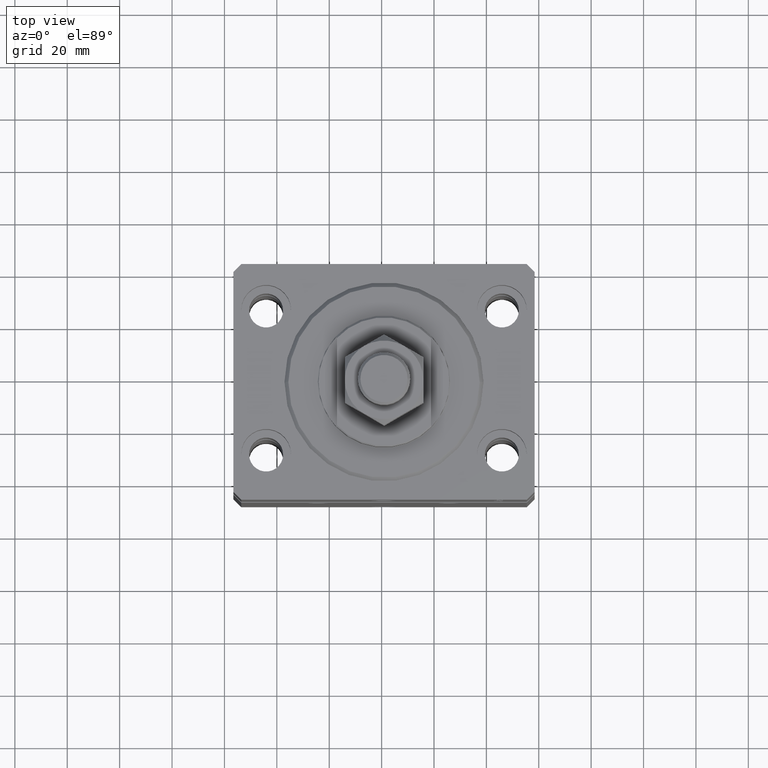
[diagram: clean part render]
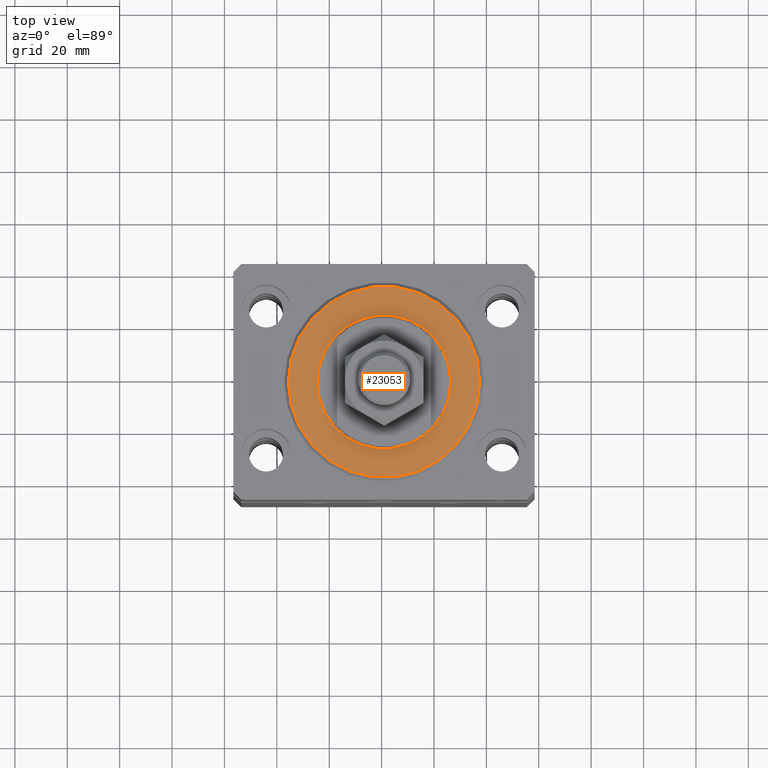
[diagram: same view with one face highlighted and labeled with its STEP entity id]
A machine part, top view. The second image highlights one B-rep face of the part: STEP entity #23053.
In plain terms, the highlighted planar face has unit normal (0, 0, -1).
Its self-contained STEP definition (entity closure, byte-faithful):
#2159 = CARTESIAN_POINT ( 'NONE',  ( 0.000000000000000000, 0.000000000000000000, 0.000000000000000000 ) ) ;
#2413 = EDGE_LOOP ( 'NONE', ( #46224, #15096 ) ) ;
#4450 = AXIS2_PLACEMENT_3D ( 'NONE', #2159, #42744, #38620 ) ;
#5028 = ORIENTED_EDGE ( 'NONE', *, *, #48041, .T. ) ;
#6444 = VERTEX_POINT ( 'NONE', #41226 ) ;
#6704 = ORIENTED_EDGE ( 'NONE', *, *, #36848, .T. ) ;
#8204 = CARTESIAN_POINT ( 'NONE',  ( 0.000000000000000000, 0.000000000000000000, 0.000000000000000000 ) ) ;
#9582 = CIRCLE ( 'NONE', #14900, 36.50000000000000000 ) ;
#10878 = EDGE_CURVE ( 'NONE', #36506, #39542, #13768, .T. ) ;
#13641 = EDGE_CURVE ( 'NONE', #39542, #36506, #9582, .T. ) ;
#13768 = CIRCLE ( 'NONE', #4450, 36.50000000000000000 ) ;
#14777 = DIRECTION ( 'NONE',  ( 1.000000000000000000, 0.000000000000000000, 0.000000000000000000 ) ) ;
#14900 = AXIS2_PLACEMENT_3D ( 'NONE', #44156, #18650, #47790 ) ;
#15096 = ORIENTED_EDGE ( 'NONE', *, *, #13641, .T. ) ;
#16101 = CARTESIAN_POINT ( 'NONE',  ( 36.50000000000000000, 0.000000000000000000, 0.000000000000000000 ) ) ;
#17739 = CIRCLE ( 'NONE', #44136, 25.50000000000000355 ) ;
#17773 = CARTESIAN_POINT ( 'NONE',  ( 0.000000000000000000, 0.000000000000000000, 0.000000000000000000 ) ) ;
#18650 = DIRECTION ( 'NONE',  ( -0.000000000000000000, -0.000000000000000000, -1.000000000000000000 ) ) ;
#20599 = AXIS2_PLACEMENT_3D ( 'NONE', #8204, #37840, #34201 ) ;
#20689 = CARTESIAN_POINT ( 'NONE',  ( -36.50000000000000000, 4.561809326823889791E-15, 0.000000000000000000 ) ) ;
#21837 = DIRECTION ( 'NONE',  ( 0.000000000000000000, 0.000000000000000000, 1.000000000000000000 ) ) ;
#23053 = ADVANCED_FACE ( 'NONE', ( #30055, #23268 ), #41469, .F. ) ;
#23268 = FACE_OUTER_BOUND ( 'NONE', #2413, .T. ) ;
#24991 = CARTESIAN_POINT ( 'NONE',  ( 0.000000000000000000, 0.000000000000000000, 0.000000000000000000 ) ) ;
#30055 = FACE_BOUND ( 'NONE', #44700, .T. ) ;
#30991 = AXIS2_PLACEMENT_3D ( 'NONE', #17773, #32599, #47405 ) ;
#32599 = DIRECTION ( 'NONE',  ( 0.000000000000000000, 0.000000000000000000, 1.000000000000000000 ) ) ;
#34201 = DIRECTION ( 'NONE',  ( 1.000000000000000000, 0.000000000000000000, -0.000000000000000000 ) ) ;
#34884 = CIRCLE ( 'NONE', #30991, 25.50000000000000355 ) ;
#36506 = VERTEX_POINT ( 'NONE', #16101 ) ;
#36848 = EDGE_CURVE ( 'NONE', #6444, #37149, #34884, .T. ) ;
#37149 = VERTEX_POINT ( 'NONE', #46996 ) ;
#37840 = DIRECTION ( 'NONE',  ( 0.000000000000000000, 0.000000000000000000, 1.000000000000000000 ) ) ;
#38620 = DIRECTION ( 'NONE',  ( 1.000000000000000000, 0.000000000000000000, 0.000000000000000000 ) ) ;
#39542 = VERTEX_POINT ( 'NONE', #20689 ) ;
#41226 = CARTESIAN_POINT ( 'NONE',  ( -25.50000000000000355, 3.122849337825751011E-15, 2.168404344971008868E-16 ) ) ;
#41469 = PLANE ( 'NONE',  #20599 ) ;
#42744 = DIRECTION ( 'NONE',  ( -0.000000000000000000, -0.000000000000000000, -1.000000000000000000 ) ) ;
#44136 = AXIS2_PLACEMENT_3D ( 'NONE', #24991, #21837, #14777 ) ;
#44156 = CARTESIAN_POINT ( 'NONE',  ( 0.000000000000000000, 0.000000000000000000, 0.000000000000000000 ) ) ;
#44700 = EDGE_LOOP ( 'NONE', ( #5028, #6704 ) ) ;
#46224 = ORIENTED_EDGE ( 'NONE', *, *, #10878, .T. ) ;
#46996 = CARTESIAN_POINT ( 'NONE',  ( 25.50000000000000355, 0.000000000000000000, 2.168404344971008868E-16 ) ) ;
#47405 = DIRECTION ( 'NONE',  ( 1.000000000000000000, 0.000000000000000000, 0.000000000000000000 ) ) ;
#47790 = DIRECTION ( 'NONE',  ( 1.000000000000000000, 0.000000000000000000, 0.000000000000000000 ) ) ;
#48041 = EDGE_CURVE ( 'NONE', #37149, #6444, #17739, .T. ) ;